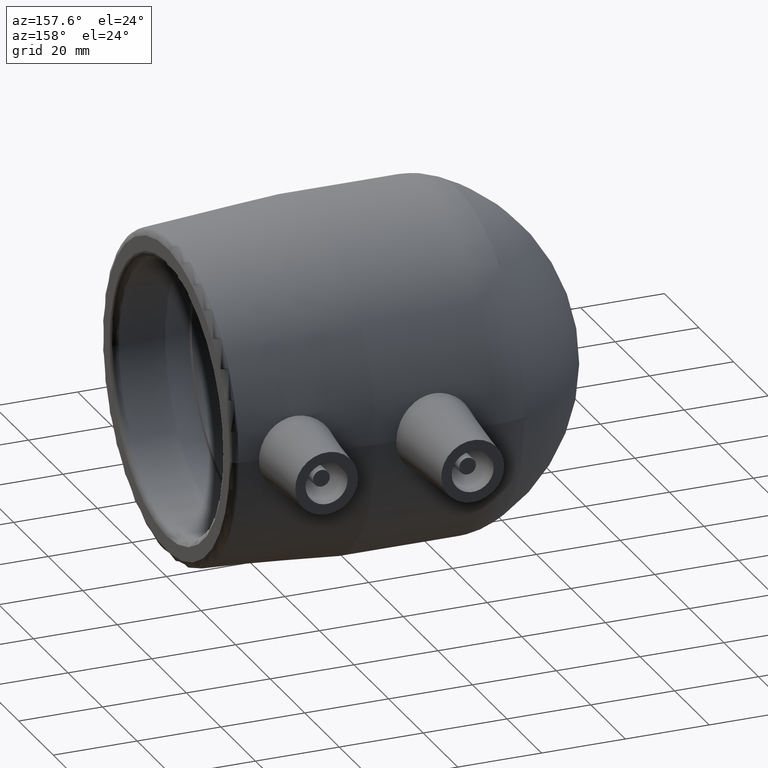
[diagram: clean part render]
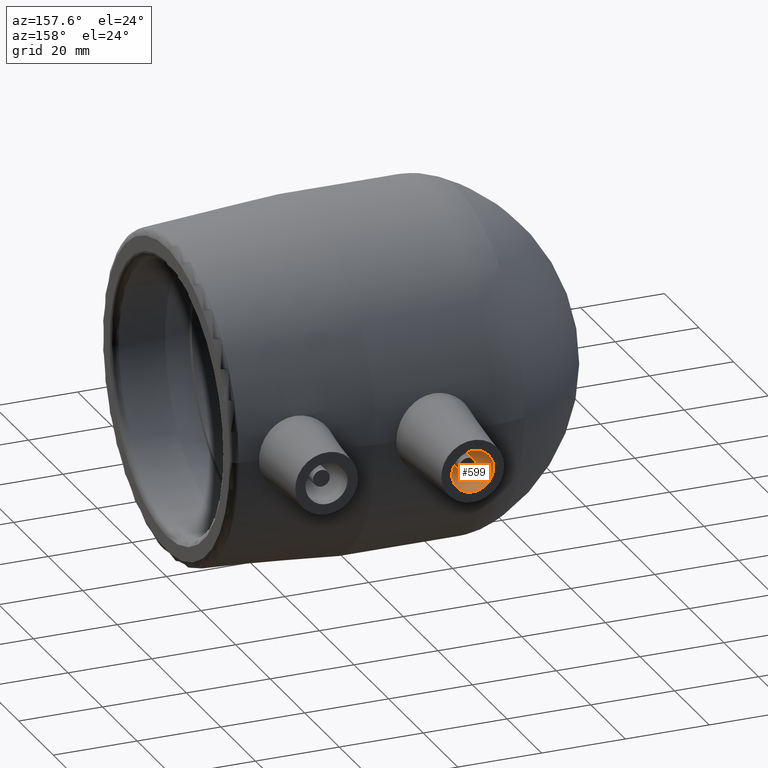
[diagram: same view with one face highlighted and labeled with its STEP entity id]
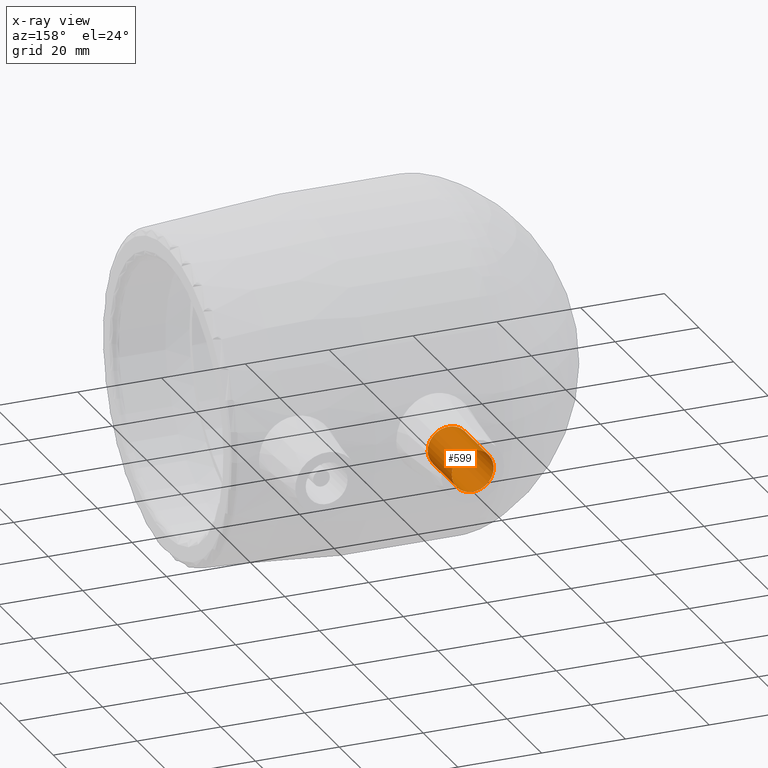
[diagram: x-ray of the same camera — body ghosted, the highlighted face saturated]
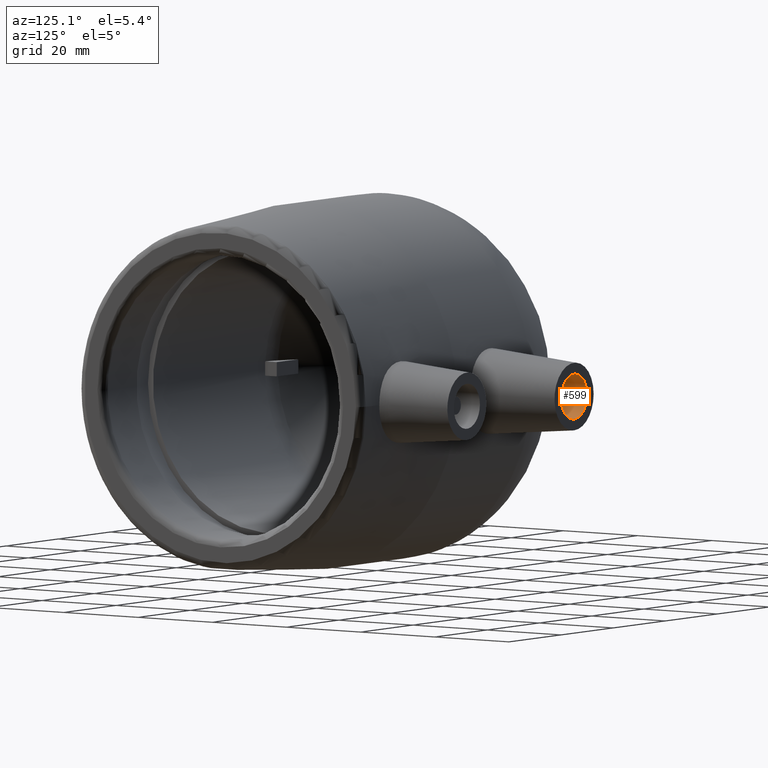
[diagram: same view with one face highlighted and labeled with its STEP entity id]
A machine part, auxiliary view. The second image highlights one B-rep face of the part: STEP entity #599.
The next image is the same camera in x-ray: the body ghosted, the highlighted face saturated — about 0% of this face is hidden behind the body in this view.
A second angle (auxiliary view) of the same face is appended — the face is thin or edge-on in the first view.
In plain terms, the highlighted cylindrical surface (bore or boss wall) has radius 5 mm, axis along (0, -1, 0).
Its self-contained STEP definition (entity closure, byte-faithful):
#24=FACE_BOUND('',#188,.T.);
#45=CYLINDRICAL_SURFACE('',#677,5.);
#137=FACE_OUTER_BOUND('',#187,.T.);
#187=EDGE_LOOP('',(#505));
#188=EDGE_LOOP('',(#506));
#253=CIRCLE('',#678,5.);
#254=CIRCLE('',#679,5.);
#306=VERTEX_POINT('',#1094);
#307=VERTEX_POINT('',#1096);
#381=EDGE_CURVE('',#306,#306,#253,.T.);
#382=EDGE_CURVE('',#307,#307,#254,.T.);
#505=ORIENTED_EDGE('',*,*,#381,.T.);
#506=ORIENTED_EDGE('',*,*,#382,.F.);
#599=ADVANCED_FACE('',(#137,#24),#45,.F.);
#677=AXIS2_PLACEMENT_3D('',#1093,#848,#849);
#678=AXIS2_PLACEMENT_3D('',#1095,#850,#851);
#679=AXIS2_PLACEMENT_3D('',#1097,#852,#853);
#848=DIRECTION('center_axis',(0.,-1.,0.));
#849=DIRECTION('ref_axis',(-1.,0.,0.));
#850=DIRECTION('center_axis',(0.,-1.,0.));
#851=DIRECTION('ref_axis',(-1.,0.,0.));
#852=DIRECTION('center_axis',(0.,-1.,0.));
#853=DIRECTION('ref_axis',(-1.,0.,0.));
#1093=CARTESIAN_POINT('Origin',(-47.5,62.,0.));
#1094=CARTESIAN_POINT('',(-42.5,48.,-6.12323399573677E-16));
#1095=CARTESIAN_POINT('Origin',(-47.5,48.,0.));
#1096=CARTESIAN_POINT('',(-42.5,62.,-6.12323399573677E-16));
#1097=CARTESIAN_POINT('Origin',(-47.5,62.,0.));